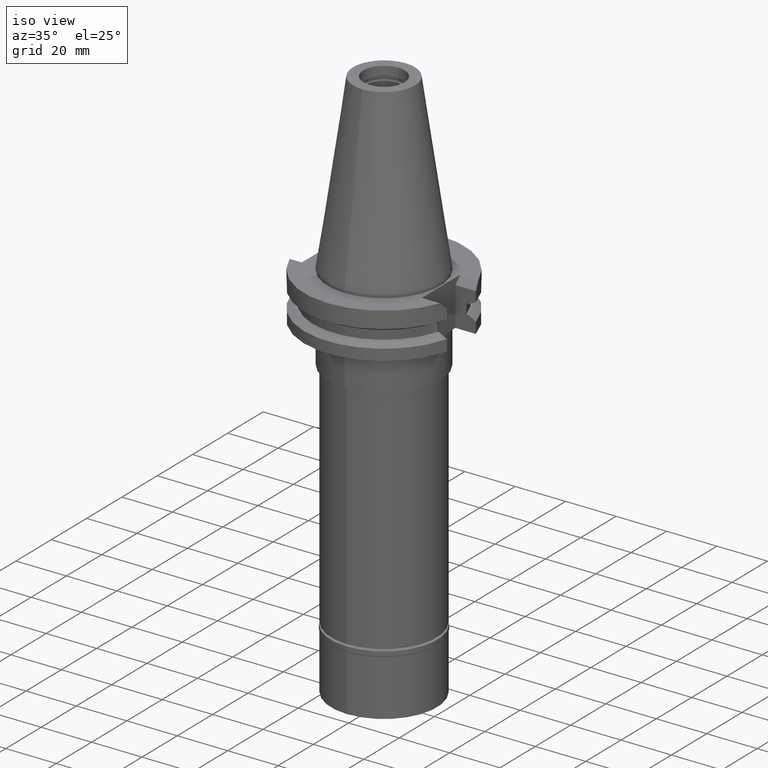
[diagram: clean part render]
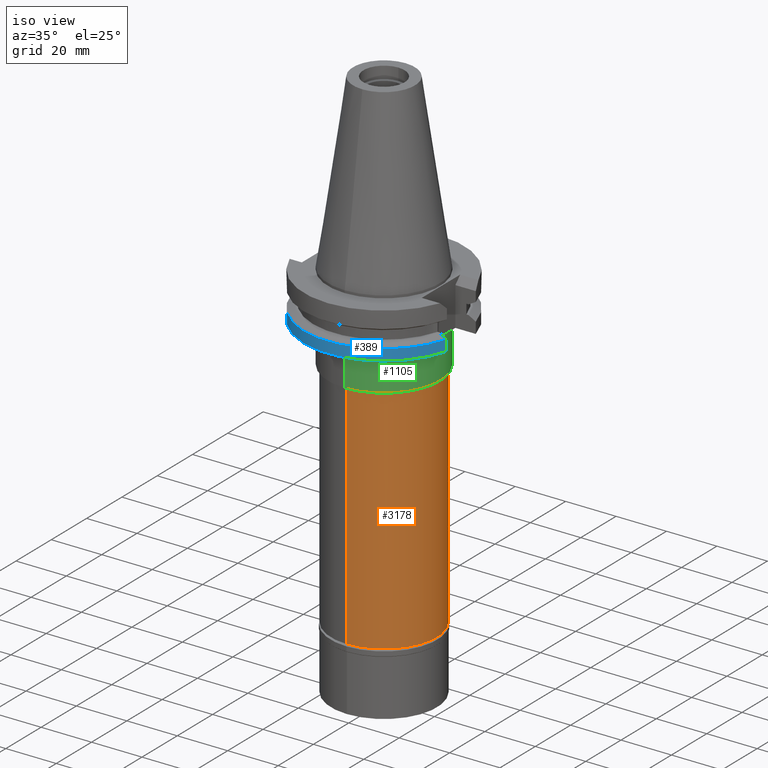
[diagram: same view with three faces highlighted in distinct colors, each labeled with its STEP entity id]
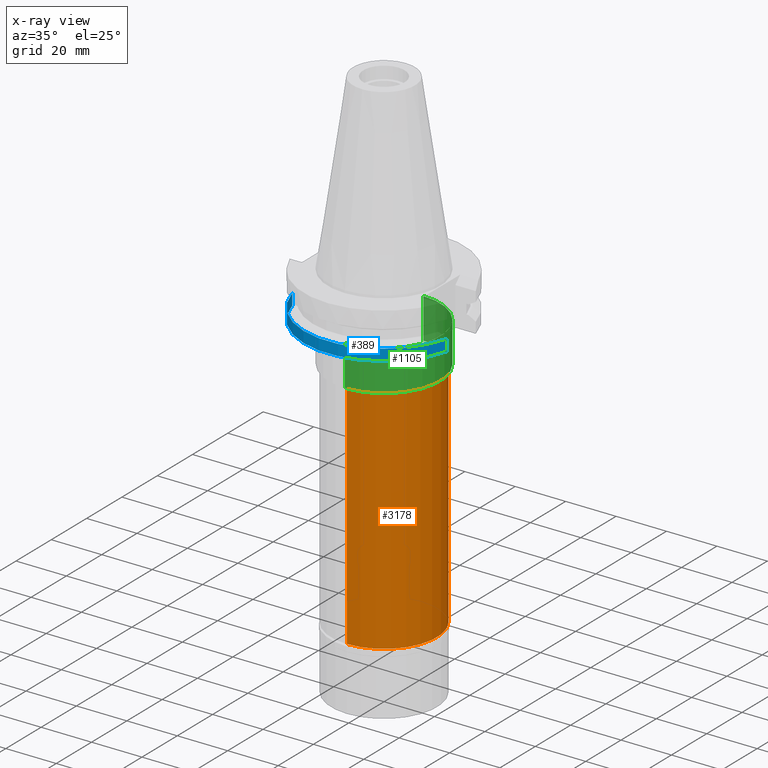
[diagram: x-ray of the same camera — body ghosted, the three highlighted faces saturated]
A machine part, iso view with three faces highlighted in distinct colors.
The next image is the same camera in x-ray (body ghosted, the three faces saturated) — at least one of them is partly hidden behind the body in this view.
Their STEP definitions:

[orange] entity #3178 — the highlighted cylindrical surface (partial cylindrical patch) has radius 21 mm, axis along (0, 0, -1).
#128 = EDGE_CURVE ( 'NONE', #1688, #2803, #2828, .T. ) ;
#155 = CARTESIAN_POINT ( 'NONE',  ( 0.0000000000000000000, 21.00000000000000000, -35.50000000000000000 ) ) ;
#348 = CARTESIAN_POINT ( 'NONE',  ( 0.0000000000000000000, -21.00000000000000000, -127.2999999999999972 ) ) ;
#438 = FACE_OUTER_BOUND ( 'NONE', #1741, .T. ) ;
#683 = CARTESIAN_POINT ( 'NONE',  ( 0.0000000000000000000, -21.00000000000000000, -35.50000000000000000 ) ) ;
#767 = CARTESIAN_POINT ( 'NONE',  ( 0.0000000000000000000, 2.190984972184999566E-14, -127.2999999999999972 ) ) ;
#860 = CARTESIAN_POINT ( 'NONE',  ( 0.0000000000000000000, 0.0000000000000000000, -35.50000000000000000 ) ) ;
#943 = DIRECTION ( 'NONE',  ( 0.0000000000000000000, -1.000000000000000000, 0.0000000000000000000 ) ) ;
#1089 = EDGE_CURVE ( 'NONE', #1939, #2803, #2588, .T. ) ;
#1118 = ORIENTED_EDGE ( 'NONE', *, *, #2587, .T. ) ;
#1120 = VECTOR ( 'NONE', #1196, 1000.000000000000000 ) ;
#1155 = AXIS2_PLACEMENT_3D ( 'NONE', #767, #2789, #1782 ) ;
#1158 = VECTOR ( 'NONE', #2031, 1000.000000000000000 ) ;
#1196 = DIRECTION ( 'NONE',  ( 0.0000000000000000000, 0.0000000000000000000, -1.000000000000000000 ) ) ;
#1251 = VERTEX_POINT ( 'NONE', #1320 ) ;
#1320 = CARTESIAN_POINT ( 'NONE',  ( 0.0000000000000000000, -21.00000000000000000, -35.50000000000000000 ) ) ;
#1423 = LINE ( 'NONE', #683, #1120 ) ;
#1563 = CARTESIAN_POINT ( 'NONE',  ( 0.0000000000000000000, 21.00000000000000000, -35.50000000000000000 ) ) ;
#1574 = CARTESIAN_POINT ( 'NONE',  ( 0.0000000000000000000, 21.00000000000000000, -127.2999999999999972 ) ) ;
#1688 = VERTEX_POINT ( 'NONE', #155 ) ;
#1741 = EDGE_LOOP ( 'NONE', ( #1911, #1118, #2473, #3147 ) ) ;
#1782 = DIRECTION ( 'NONE',  ( 0.0000000000000000000, -1.000000000000000000, 0.0000000000000000000 ) ) ;
#1809 = AXIS2_PLACEMENT_3D ( 'NONE', #860, #2362, #2898 ) ;
#1859 = EDGE_CURVE ( 'NONE', #1688, #1251, #3234, .T. ) ;
#1911 = ORIENTED_EDGE ( 'NONE', *, *, #1859, .T. ) ;
#1923 = AXIS2_PLACEMENT_3D ( 'NONE', #3013, #2454, #943 ) ;
#1939 = VERTEX_POINT ( 'NONE', #348 ) ;
#2031 = DIRECTION ( 'NONE',  ( 0.0000000000000000000, 0.0000000000000000000, -1.000000000000000000 ) ) ;
#2362 = DIRECTION ( 'NONE',  ( 0.0000000000000000000, 0.0000000000000000000, -1.000000000000000000 ) ) ;
#2454 = DIRECTION ( 'NONE',  ( 0.0000000000000000000, 0.0000000000000000000, -1.000000000000000000 ) ) ;
#2473 = ORIENTED_EDGE ( 'NONE', *, *, #1089, .T. ) ;
#2587 = EDGE_CURVE ( 'NONE', #1251, #1939, #1423, .T. ) ;
#2588 = CIRCLE ( 'NONE', #1155, 21.00000000000000000 ) ;
#2789 = DIRECTION ( 'NONE',  ( 0.0000000000000000000, 0.0000000000000000000, 1.000000000000000000 ) ) ;
#2803 = VERTEX_POINT ( 'NONE', #1574 ) ;
#2828 = LINE ( 'NONE', #1563, #1158 ) ;
#2898 = DIRECTION ( 'NONE',  ( 0.0000000000000000000, 1.000000000000000000, 0.0000000000000000000 ) ) ;
#3013 = CARTESIAN_POINT ( 'NONE',  ( 0.0000000000000000000, 2.190984972184999566E-14, 78.90749999999999886 ) ) ;
#3147 = ORIENTED_EDGE ( 'NONE', *, *, #128, .F. ) ;
#3178 = ADVANCED_FACE ( 'NONE', ( #438 ), #3254, .T. ) ;
#3234 = CIRCLE ( 'NONE', #1809, 21.00000000000000000 ) ;
#3254 = CYLINDRICAL_SURFACE ( 'NONE', #1923, 21.00000000000000000 ) ;

[blue] entity #389 — the highlighted cylindrical surface (partial cylindrical patch) has radius 31.75 mm, axis along (0, 0, -1).
#32 = CARTESIAN_POINT ( 'NONE',  ( 0.0000000000000000000, 2.190984972184999566E-14, -19.05000000000000071 ) ) ;
#90 = EDGE_CURVE ( 'NONE', #1598, #740, #850, .T. ) ;
#143 = LINE ( 'NONE', #2926, #1122 ) ;
#372 = CARTESIAN_POINT ( 'NONE',  ( 0.0000000000000000000, 2.190984972184999566E-14, 78.90749999999999886 ) ) ;
#389 = ADVANCED_FACE ( 'NONE', ( #1128 ), #2996, .T. ) ;
#427 = VERTEX_POINT ( 'NONE', #2028 ) ;
#444 = CARTESIAN_POINT ( 'NONE',  ( -30.67550162588999640, -8.189999999999999503, -19.05000000000000071 ) ) ;
#740 = VERTEX_POINT ( 'NONE', #2660 ) ;
#850 = CIRCLE ( 'NONE', #2595, 31.75000000000000000 ) ;
#934 = LINE ( 'NONE', #3000, #3246 ) ;
#969 = AXIS2_PLACEMENT_3D ( 'NONE', #2790, #1260, #1570 ) ;
#1122 = VECTOR ( 'NONE', #1157, 999.9999999999998863 ) ;
#1128 = FACE_OUTER_BOUND ( 'NONE', #2779, .T. ) ;
#1157 = DIRECTION ( 'NONE',  ( 3.682727395012927837E-08, 1.379364639785971855E-07, -0.9999999999999898970 ) ) ;
#1260 = DIRECTION ( 'NONE',  ( 0.0000000000000000000, 0.0000000000000000000, -1.000000000000000000 ) ) ;
#1567 = CIRCLE ( 'NONE', #969, 31.74999999999998579 ) ;
#1570 = DIRECTION ( 'NONE',  ( 0.9661575315241073270, -0.2579527559055020958, 0.0000000000000000000 ) ) ;
#1598 = VERTEX_POINT ( 'NONE', #444 ) ;
#1671 = DIRECTION ( 'NONE',  ( 0.0000000000000000000, -1.000000000000000000, 0.0000000000000000000 ) ) ;
#2028 = CARTESIAN_POINT ( 'NONE',  ( -30.67550165945999652, -8.189999874273000913, -14.65366564556999940 ) ) ;
#2136 = DIRECTION ( 'NONE',  ( 0.0000000000000000000, 0.0000000000000000000, -1.000000000000000000 ) ) ;
#2223 = ORIENTED_EDGE ( 'NONE', *, *, #2650, .F. ) ;
#2342 = ORIENTED_EDGE ( 'NONE', *, *, #90, .T. ) ;
#2424 = VERTEX_POINT ( 'NONE', #2844 ) ;
#2561 = DIRECTION ( 'NONE',  ( 0.0000000000000000000, -1.000000000000000000, 0.0000000000000000000 ) ) ;
#2595 = AXIS2_PLACEMENT_3D ( 'NONE', #32, #3054, #2561 ) ;
#2637 = ORIENTED_EDGE ( 'NONE', *, *, #3268, .T. ) ;
#2643 = AXIS2_PLACEMENT_3D ( 'NONE', #372, #2136, #1671 ) ;
#2650 = EDGE_CURVE ( 'NONE', #2424, #740, #143, .T. ) ;
#2660 = CARTESIAN_POINT ( 'NONE',  ( 30.67550162588999640, -8.189999999999999503, -19.05000000000000071 ) ) ;
#2709 = EDGE_CURVE ( 'NONE', #1598, #427, #934, .T. ) ;
#2779 = EDGE_LOOP ( 'NONE', ( #2637, #2966, #2342, #2223 ) ) ;
#2790 = CARTESIAN_POINT ( 'NONE',  ( 0.0000000000000000000, 1.055026073064999954E-14, -14.65366676908000088 ) ) ;
#2844 = CARTESIAN_POINT ( 'NONE',  ( 30.67550146398999900, -8.190000606413999407, -14.65367218811000072 ) ) ;
#2854 = DIRECTION ( 'NONE',  ( -7.635527153158996472E-09, 2.859817412263998627E-08, 0.9999999999999995559 ) ) ;
#2926 = CARTESIAN_POINT ( 'NONE',  ( 30.67550146398999900, -8.190000606413999407, -14.65367218811000072 ) ) ;
#2966 = ORIENTED_EDGE ( 'NONE', *, *, #2709, .F. ) ;
#2996 = CYLINDRICAL_SURFACE ( 'NONE', #2643, 31.75000000000000000 ) ;
#3000 = CARTESIAN_POINT ( 'NONE',  ( -30.67550162588999640, -8.189999999999999503, -19.05000000000000071 ) ) ;
#3054 = DIRECTION ( 'NONE',  ( 0.0000000000000000000, 0.0000000000000000000, 1.000000000000000000 ) ) ;
#3246 = VECTOR ( 'NONE', #2854, 1000.000000000000000 ) ;
#3268 = EDGE_CURVE ( 'NONE', #2424, #427, #1567, .T. ) ;

[green] entity #1105 — the highlighted cylindrical surface (partial cylindrical patch) has radius 22.225 mm, axis along (0, 0, -1).
#10 = EDGE_LOOP ( 'NONE', ( #29, #2802, #469, #2468 ) ) ;
#29 = ORIENTED_EDGE ( 'NONE', *, *, #2316, .T. ) ;
#42 = DIRECTION ( 'NONE',  ( 0.0000000000000000000, 0.0000000000000000000, -1.000000000000000000 ) ) ;
#47 = VECTOR ( 'NONE', #42, 1000.000000000000000 ) ;
#221 = EDGE_CURVE ( 'NONE', #3275, #398, #1699, .T. ) ;
#271 = AXIS2_PLACEMENT_3D ( 'NONE', #2317, #2811, #2293 ) ;
#282 = CARTESIAN_POINT ( 'NONE',  ( 0.0000000000000000000, 2.190984972184999566E-14, 78.90749999999999886 ) ) ;
#358 = DIRECTION ( 'NONE',  ( 0.0000000000000000000, 1.000000000000000000, 0.0000000000000000000 ) ) ;
#398 = VERTEX_POINT ( 'NONE', #409 ) ;
#409 = CARTESIAN_POINT ( 'NONE',  ( 0.0000000000000000000, 22.22500000000000142, -35.00000000000000000 ) ) ;
#421 = VERTEX_POINT ( 'NONE', #2354 ) ;
#469 = ORIENTED_EDGE ( 'NONE', *, *, #221, .T. ) ;
#631 = EDGE_CURVE ( 'NONE', #421, #398, #1377, .T. ) ;
#729 = CARTESIAN_POINT ( 'NONE',  ( 0.0000000000000000000, -22.22500000000000142, -19.05000000000000071 ) ) ;
#965 = DIRECTION ( 'NONE',  ( 0.0000000000000000000, 0.0000000000000000000, -1.000000000000000000 ) ) ;
#1013 = CARTESIAN_POINT ( 'NONE',  ( 0.0000000000000000000, -22.22500000000000142, -35.00000000000000000 ) ) ;
#1105 = ADVANCED_FACE ( 'NONE', ( #2804 ), #2553, .T. ) ;
#1213 = AXIS2_PLACEMENT_3D ( 'NONE', #282, #2207, #1359 ) ;
#1333 = DIRECTION ( 'NONE',  ( 0.0000000000000000000, 0.0000000000000000000, -1.000000000000000000 ) ) ;
#1359 = DIRECTION ( 'NONE',  ( 0.0000000000000000000, -1.000000000000000000, 0.0000000000000000000 ) ) ;
#1377 = LINE ( 'NONE', #2365, #47 ) ;
#1513 = LINE ( 'NONE', #1976, #2334 ) ;
#1609 = CIRCLE ( 'NONE', #2505, 22.22500000000000142 ) ;
#1699 = CIRCLE ( 'NONE', #271, 22.22500000000000142 ) ;
#1976 = CARTESIAN_POINT ( 'NONE',  ( 0.0000000000000000000, -22.22500000000000142, -19.05000000000000071 ) ) ;
#2164 = VERTEX_POINT ( 'NONE', #729 ) ;
#2207 = DIRECTION ( 'NONE',  ( 0.0000000000000000000, 0.0000000000000000000, -1.000000000000000000 ) ) ;
#2293 = DIRECTION ( 'NONE',  ( 0.0000000000000000000, -1.000000000000000000, 0.0000000000000000000 ) ) ;
#2316 = EDGE_CURVE ( 'NONE', #421, #2164, #1609, .T. ) ;
#2317 = CARTESIAN_POINT ( 'NONE',  ( 0.0000000000000000000, 2.190984972184999566E-14, -35.00000000000000000 ) ) ;
#2334 = VECTOR ( 'NONE', #965, 1000.000000000000000 ) ;
#2354 = CARTESIAN_POINT ( 'NONE',  ( 0.0000000000000000000, 22.22500000000000142, -19.05000000000000071 ) ) ;
#2365 = CARTESIAN_POINT ( 'NONE',  ( 0.0000000000000000000, 22.22500000000000142, -19.05000000000000071 ) ) ;
#2468 = ORIENTED_EDGE ( 'NONE', *, *, #631, .F. ) ;
#2505 = AXIS2_PLACEMENT_3D ( 'NONE', #3006, #1333, #358 ) ;
#2553 = CYLINDRICAL_SURFACE ( 'NONE', #1213, 22.22500000000000142 ) ;
#2776 = EDGE_CURVE ( 'NONE', #2164, #3275, #1513, .T. ) ;
#2802 = ORIENTED_EDGE ( 'NONE', *, *, #2776, .T. ) ;
#2804 = FACE_OUTER_BOUND ( 'NONE', #10, .T. ) ;
#2811 = DIRECTION ( 'NONE',  ( 0.0000000000000000000, 0.0000000000000000000, 1.000000000000000000 ) ) ;
#3006 = CARTESIAN_POINT ( 'NONE',  ( 0.0000000000000000000, 2.190984972184999566E-14, -19.05000000000000071 ) ) ;
#3275 = VERTEX_POINT ( 'NONE', #1013 ) ;